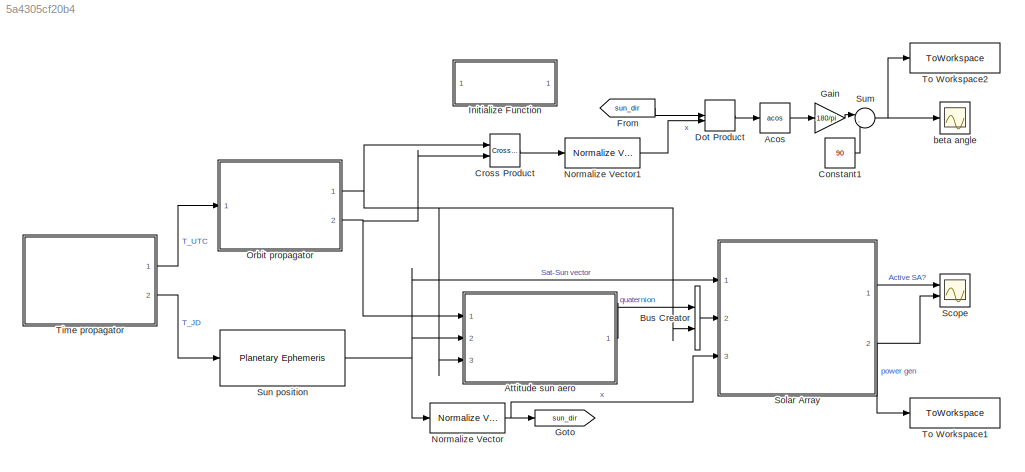
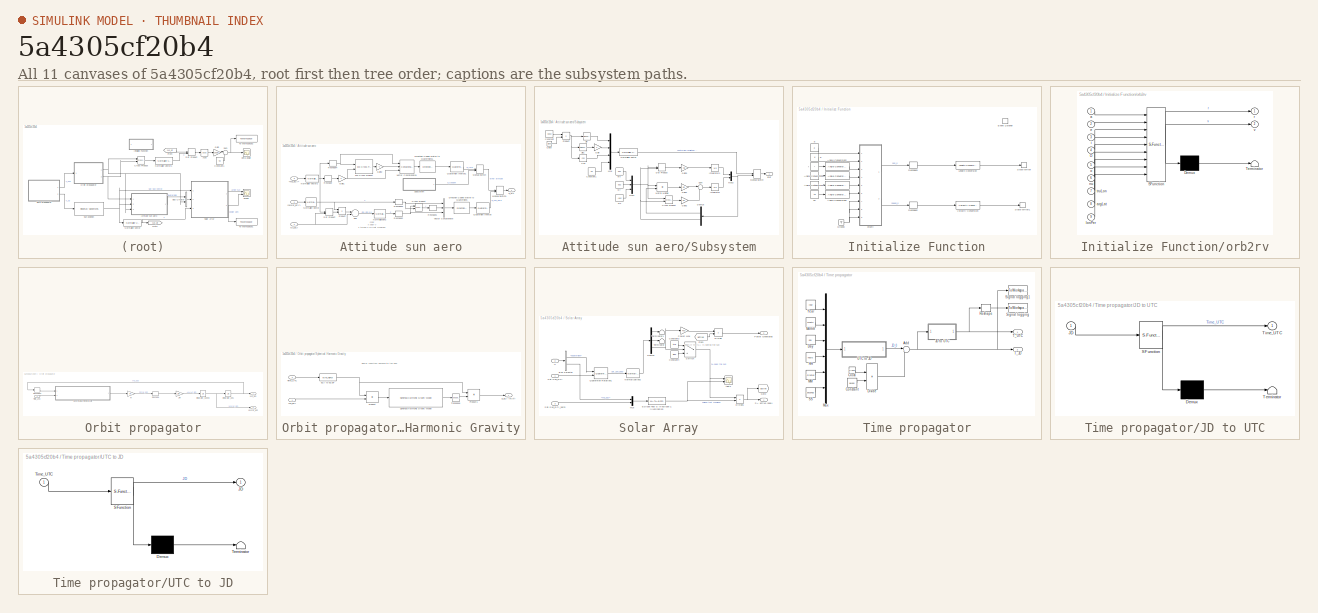
[diagram: thumbnail index - all 11 canvases of the model, root first then tree order]
MODEL slx_5a4305cf20b4
KIND model
CONFIG AbsTol = auto
CONFIG EnableMultiTasking = off
CONFIG FixedStep = delta_t
CONFIG MaxStep = auto
CONFIG MinStep = auto
CONFIG RelTol = 1e-3
CONFIG SampleTimeConstraint = Unconstrained
CONFIG Solver = FixedStepAuto
CONFIG SolverName = FixedStepAuto
CONFIG StartTime = 0.0
CONFIG StopTime = tsimulation
BLOCK [Trigonometry] Acos
  Operator = acos
  Ports = [1, 1]
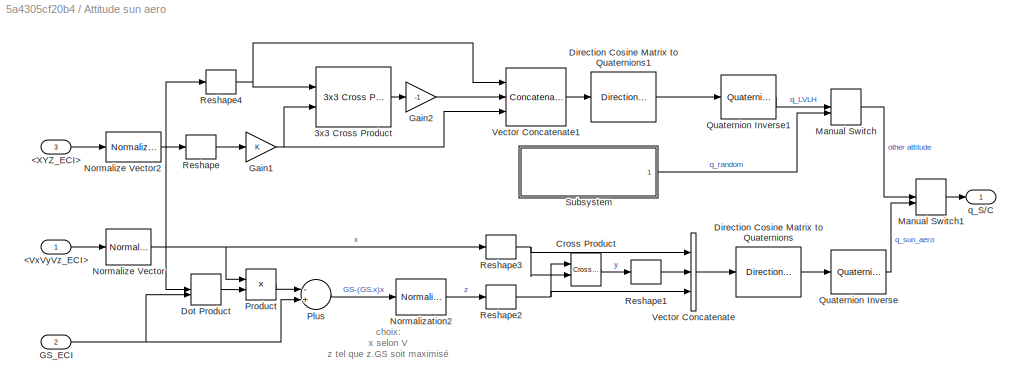
BLOCK [SubSystem] Attitude sun aero
  Ports = [3, 1]
  RequestExecContextInheritance = off
BLOCK [Reference] Attitude sun aero/3x3 Cross Product  REF=sharedutil/3x3 Cross Product
  Ports = [2, 1]
  SourceBlock = sharedutil/3x3 Cross Product
  SourceProductBaseCode = AE,PW,MT,UV,VE,VP
  SourceType = CrossProduct
BLOCK [Inport] Attitude sun aero/<VxVyVz_ECI>
  IconDisplay = Port number
BLOCK [Inport] Attitude sun aero/<XYZ_ECI>
  IconDisplay = Port number
  Port = 3
BLOCK [Reference] Attitude sun aero/Cross Product  REF=vrlib/Utilities/Cross Product
  Ports = [2, 1]
  SourceBlock = vrlib/Utilities/Cross Product
  SourceProductBaseCode = SL
  SourceType = Cross Product
BLOCK [Reference] Attitude sun aero/Direction Cosine Matrix to Quaternions  REF=sharedtransform/Direction Cosine Matrix 
to Quaternions
  Ports = [1, 1]
  SourceBlock = sharedtransform/Direction Cosine Matrix \nto Quaternions
  SourceProductBaseCode = AE,PW,MT,UV,VE,VP
  SourceType = DCM2Quaternion
BLOCK [Reference] Attitude sun aero/Direction Cosine Matrix to Quaternions1  REF=sharedtransform/Direction Cosine Matrix 
to Quaternions
  Ports = [1, 1]
  SourceBlock = sharedtransform/Direction Cosine Matrix \nto Quaternions
  SourceProductBaseCode = AE,PW,MT,UV,VE,VP
  SourceType = DCM2Quaternion
BLOCK [DotProduct] Attitude sun aero/Dot Product
  OutDataTypeStr = Inherit: Inherit via internal rule
BLOCK [Inport] Attitude sun aero/GS_ECI
  IconDisplay = Port number
  Port = 2
BLOCK [Gain] Attitude sun aero/Gain1
  OutDataTypeStr = Inherit: Inherit via internal rule
  ParamDataTypeStr = Inherit: Inherit via internal rule
  SaturateOnIntegerOverflow = off
BLOCK [Gain] Attitude sun aero/Gain2
  Gain = -1
  OutDataTypeStr = Inherit: Inherit via internal rule
  ParamDataTypeStr = Inherit: Inherit via internal rule
  SaturateOnIntegerOverflow = off
BLOCK [ManualSwitch] Attitude sun aero/Manual Switch
  CurrentSetting = 0
BLOCK [ManualSwitch] Attitude sun aero/Manual Switch1
  CurrentSetting = 0
BLOCK [Reference] Attitude sun aero/Normalization2  REF=dspmathops/Normalization
  Ports = [1, 1]
  SourceBlock = dspmathops/Normalization
  SourceProductBaseCode = DS
  SourceType = Normalization
BLOCK [Reference] Attitude sun aero/Normalize Vector  REF=vrlib/Utilities/Normalize Vector
  Ports = [1, 1]
  SourceBlock = vrlib/Utilities/Normalize Vector
  SourceProductBaseCode = SL
  SourceType = Normalize Vector
BLOCK [Reference] Attitude sun aero/Normalize Vector2  REF=vrlib/Utilities/Normalize Vector
  Ports = [1, 1]
  SourceBlock = vrlib/Utilities/Normalize Vector
  SourceProductBaseCode = SL
  SourceType = Normalize Vector
BLOCK [Sum] Attitude sun aero/Plus
  InputSameDT = off
  Inputs = -+
  OutDataTypeStr = Inherit: Inherit via internal rule
  Ports = [2, 1]
  SaturateOnIntegerOverflow = off
BLOCK [Product] Attitude sun aero/Product
  InputSameDT = off
  OutDataTypeStr = Inherit: Inherit via internal rule
  Ports = [2, 1]
  RndMeth = Floor
  SaturateOnIntegerOverflow = off
BLOCK [Reference] Attitude sun aero/Quaternion Inverse  REF=aerolibutil/Quaternion
Inverse
  Ports = [1, 1]
  SourceBlock = aerolibutil/Quaternion\nInverse
  SourceProductBaseCode = AE
  SourceType = Quaternion Inverse
BLOCK [Reference] Attitude sun aero/Quaternion Inverse1  REF=aerolibutil/Quaternion
Inverse
  Ports = [1, 1]
  SourceBlock = aerolibutil/Quaternion\nInverse
  SourceProductBaseCode = AE
  SourceType = Quaternion Inverse
BLOCK [Reshape] Attitude sun aero/Reshape
  OutputDimensionality = Column vector (2-D)
  Ports = [1, 1]
BLOCK [Reshape] Attitude sun aero/Reshape1
  OutputDimensionality = Column vector (2-D)
  Ports = [1, 1]
BLOCK [Reshape] Attitude sun aero/Reshape2
  OutputDimensionality = Column vector (2-D)
  Ports = [1, 1]
BLOCK [Reshape] Attitude sun aero/Reshape3
  OutputDimensionality = Column vector (2-D)
  Ports = [1, 1]
BLOCK [Reshape] Attitude sun aero/Reshape4
  OutputDimensionality = Column vector (2-D)
  Ports = [1, 1]
BLOCK [SubSystem] Attitude sun aero/Subsystem
  Ports = [0, 1]
  RequestExecContextInheritance = off
BLOCK [Clock] Attitude sun aero/Subsystem/Clock
BLOCK [Constant] Attitude sun aero/Subsystem/Constant
  Value = 0.002
BLOCK [Constant] Attitude sun aero/Subsystem/Constant1
  Value = 0.2
BLOCK [Trigonometry] Attitude sun aero/Subsystem/Cos
  Operator = cos
  Ports = [1, 1]
BLOCK [Reference] Attitude sun aero/Subsystem/Cross Product  REF=vrlib/Utilities/Cross Product
  Ports = [2, 1]
  SourceBlock = vrlib/Utilities/Cross Product
  SourceProductBaseCode = SL
  SourceType = Cross Product
BLOCK [Demux] Attitude sun aero/Subsystem/Demux
  DisplayOption = bar
  Outputs = [1;3]
  Ports = [1, 2]
BLOCK [DotProduct] Attitude sun aero/Subsystem/Dot Product
  OutDataTypeStr = Inherit: Inherit via internal rule
BLOCK [Gain] Attitude sun aero/Subsystem/Gain
  Gain = 2
  OutDataTypeStr = Inherit: Inherit via internal rule
  ParamDataTypeStr = Inherit: Inherit via internal rule
  SaturateOnIntegerOverflow = off
BLOCK [Gain] Attitude sun aero/Subsystem/Gain1
  Gain = 0.5
  OutDataTypeStr = Inherit: Inherit via internal rule
  ParamDataTypeStr = Inherit: Inherit via internal rule
  SaturateOnIntegerOverflow = off
BLOCK [Gain] Attitude sun aero/Subsystem/Gain2
  Gain = 0.5
  OutDataTypeStr = Inherit: Inherit via internal rule
  ParamDataTypeStr = Inherit: Inherit via internal rule
  SaturateOnIntegerOverflow = off
BLOCK [Gain] Attitude sun aero/Subsystem/Gain3
  Gain = -0.5
  OutDataTypeStr = Inherit: Inherit via internal rule
  ParamDataTypeStr = Inherit: Inherit via internal rule
  SaturateOnIntegerOverflow = off
BLOCK [Integrator] Attitude sun aero/Subsystem/Integrator
  InitialCondition = [0;0;0]
  Ports = [1, 1]
BLOCK [Integrator] Attitude sun aero/Subsystem/Integrator1
  InitialCondition = 1
  Ports = [1, 1]
BLOCK [ManualSwitch] Attitude sun aero/Subsystem/Manual Switch
  CurrentSetting = 0
BLOCK [Product] Attitude sun aero/Subsystem/Matrix Multiply
  InputSameDT = off
  Multiplication = Matrix(*)
  OutDataTypeStr = Inherit: Inherit via internal rule
  Ports = [2, 1]
  RndMeth = Floor
  SaturateOnIntegerOverflow = off
BLOCK [Mux] Attitude sun aero/Subsystem/Mux
  DisplayOption = bar
  Ports = [4, 1]
BLOCK [Mux] Attitude sun aero/Subsystem/Mux1
  DisplayOption = bar
  Inputs = 3
  Ports = [3, 1]
BLOCK [Mux] Attitude sun aero/Subsystem/Mux2
  DisplayOption = bar
  Inputs = [1;3]
  Ports = [2, 1]
BLOCK [Reference] Attitude sun aero/Subsystem/Normalize Vector  REF=vrlib/Utilities/Normalize Vector
  Ports = [1, 1]
  SourceBlock = vrlib/Utilities/Normalize Vector
  SourceProductBaseCode = SL
  SourceType = Normalize Vector
BLOCK [Product] Attitude sun aero/Subsystem/Product
  InputSameDT = off
  OutDataTypeStr = Inherit: Inherit via internal rule
  Ports = [2, 1]
  RndMeth = Floor
  SaturateOnIntegerOverflow = off
BLOCK [Trigonometry] Attitude sun aero/Subsystem/Sin
  Ports = [1, 1]
BLOCK [Trigonometry] Attitude sun aero/Subsystem/Sin1
  Ports = [1, 1]
BLOCK [Sum] Attitude sun aero/Subsystem/Sum
  IconShape = round
  InputSameDT = off
  Inputs = |+-
  OutDataTypeStr = Inherit: Inherit via internal rule
  Ports = [2, 1]
  SaturateOnIntegerOverflow = off
BLOCK [Outport] Attitude sun aero/Subsystem/qref
  IconDisplay = Port number
  VectorParamsAs1DForOutWhenUnconnected = on
BLOCK [Constant] Attitude sun aero/Subsystem/wx
  Value = 0.01
BLOCK [Constant] Attitude sun aero/Subsystem/wy
  Value = 0.02
BLOCK [Constant] Attitude sun aero/Subsystem/wz
  Value = -0.02
BLOCK [Concatenate] Attitude sun aero/Vector Concatenate
  ConcatenateDimension = 2
  Mode = Multidimensional array
  NumInputs = 3
  Ports = [3, 1]
BLOCK [Concatenate] Attitude sun aero/Vector Concatenate1
  ConcatenateDimension = 2
  Mode = Multidimensional array
  NumInputs = 3
  Ports = [3, 1]
BLOCK [Outport] Attitude sun aero/q_S//C
  IconDisplay = Port number
BLOCK [BusCreator] Bus Creator
  DisplayOption = bar
  InheritFromInputs = on
  Inputs = 2
  Ports = [2, 1]
BLOCK [Constant] Constant1
  Value = 90
BLOCK [Reference] Cross Product  REF=vrlib/Utilities/Cross Product
  Ports = [2, 1]
  SourceBlock = vrlib/Utilities/Cross Product
  SourceProductBaseCode = SL
  SourceType = Cross Product
BLOCK [DotProduct] Dot Product
  OutDataTypeStr = Inherit: Inherit via internal rule
BLOCK [From] From
  GotoTag = sun_dir
BLOCK [Gain] Gain
  Gain = 180/pi
  OutDataTypeStr = Inherit: Inherit via internal rule
  ParamDataTypeStr = Inherit: Inherit via internal rule
  SaturateOnIntegerOverflow = off
BLOCK [Goto] Goto
  GotoTag = sun_dir
BLOCK [SubSystem] Initialize Function
  Ports = []
  RequestExecContextInheritance = off
  TreatAsAtomicUnit = on
BLOCK [Reference] Initialize Function/Angle Conversion2  REF=aerolibconvert2/Angle Conversion
  Ports = [1, 1]
  SourceBlock = aerolibconvert2/Angle Conversion
  SourceProductBaseCode = AE
  SourceType = Angle Conversion
BLOCK [Reference] Initialize Function/Angle Conversion3  REF=aerolibconvert2/Angle Conversion
  Ports = [1, 1]
  SourceBlock = aerolibconvert2/Angle Conversion
  SourceProductBaseCode = AE
  SourceType = Angle Conversion
BLOCK [Reference] Initialize Function/Angle Conversion4  REF=aerolibconvert2/Angle Conversion
  Ports = [1, 1]
  SourceBlock = aerolibconvert2/Angle Conversion
  SourceProductBaseCode = AE
  SourceType = Angle Conversion
BLOCK [Reference] Initialize Function/Angle Conversion5  REF=aerolibconvert2/Angle Conversion
  Ports = [1, 1]
  SourceBlock = aerolibconvert2/Angle Conversion
  SourceProductBaseCode = AE
  SourceType = Angle Conversion
BLOCK [EventListener] Initialize Function/Event Listener
  DisableCoverage = on
  EventName = reset
BLOCK [Ground] Initialize Function/Ground
BLOCK [Reference] Initialize Function/Length Conversion  REF=aerolibconvert2/Length Conversion
  Ports = [1, 1]
  SourceBlock = aerolibconvert2/Length Conversion
  SourceProductBaseCode = AE
  SourceType = Length Conversion
BLOCK [Constant] Initialize Function/O
  Value = O
BLOCK [Reshape] Initialize Function/Reshape2
  OutputDimensionality = Column vector (2-D)
  Ports = [1, 1]
BLOCK [Reshape] Initialize Function/Reshape3
  OutputDimensionality = Column vector (2-D)
  Ports = [1, 1]
BLOCK [StateWriter] Initialize Function/State Writer
  StateOwnerBlock = ../../Orbit propagator/Integrator_pos
BLOCK [StateWriter] Initialize Function/State Writer1
  StateOwnerBlock = ../../Orbit propagator/Integrator_speed
BLOCK [Reference] Initialize Function/Velocity Conversion  REF=aerolibconvert2/Velocity Conversion
  Ports = [1, 1]
  SourceBlock = aerolibconvert2/Velocity Conversion
  SourceProductBaseCode = AE
  SourceType = Velocity Conversion
BLOCK [Constant] Initialize Function/a
  Value = a
BLOCK [Constant] Initialize Function/e
  Value = e
BLOCK [Constant] Initialize Function/i
  Value = i
BLOCK [Constant] Initialize Function/nu
  Value = nu
BLOCK [Constant] Initialize Function/o
  Value = o
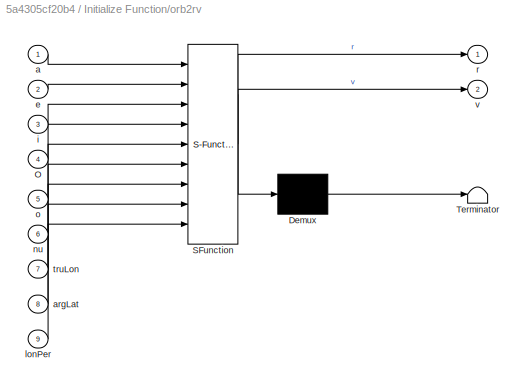
BLOCK [SubSystem] Initialize Function/orb2rv
  ErrorFcn = Stateflow.Translate.translate
  PermitHierarchicalResolution = ExplicitOnly
  Ports = [9, 2]
  RequestExecContextInheritance = off
  SFBlockType = MATLAB Function
  TreatAsAtomicUnit = on
BLOCK [Demux] Initialize Function/orb2rv/ Demux 
  DisplayOption = bar
  Outputs = 1
  Ports = [1, 1]
BLOCK [S-Function] Initialize Function/orb2rv/ SFunction 
  EnableBusSupport = on
  FunctionName = sf_sfun
  PortCounts = [9 3]
  Ports = [9, 3]
  SFcnIsStateOwnerBlock = off
  SFunctionDeploymentMode = off
  Tag = Stateflow S-Function EPS_orbit_v1a_R19a 5
BLOCK [Terminator] Initialize Function/orb2rv/ Terminator 
BLOCK [Inport] Initialize Function/orb2rv/O
  IconDisplay = Port number
  Port = 4
BLOCK [Inport] Initialize Function/orb2rv/a
  IconDisplay = Port number
BLOCK [Inport] Initialize Function/orb2rv/argLat
  IconDisplay = Port number
  Port = 8
BLOCK [Inport] Initialize Function/orb2rv/e
  IconDisplay = Port number
  Port = 2
BLOCK [Inport] Initialize Function/orb2rv/i
  IconDisplay = Port number
  Port = 3
BLOCK [Inport] Initialize Function/orb2rv/lonPer
  IconDisplay = Port number
  Port = 9
BLOCK [Inport] Initialize Function/orb2rv/nu
  IconDisplay = Port number
  Port = 6
BLOCK [Inport] Initialize Function/orb2rv/o
  IconDisplay = Port number
  Port = 5
BLOCK [Outport] Initialize Function/orb2rv/r
  IconDisplay = Port number
BLOCK [Inport] Initialize Function/orb2rv/truLon
  IconDisplay = Port number
  Port = 7
BLOCK [Outport] Initialize Function/orb2rv/v
  IconDisplay = Port number
  Port = 2
BLOCK [Reference] Normalize Vector  REF=vrlib/Utilities/Normalize Vector
  Ports = [1, 1]
  SourceBlock = vrlib/Utilities/Normalize Vector
  SourceProductBaseCode = SL
  SourceType = Normalize Vector
BLOCK [Reference] Normalize Vector1  REF=vrlib/Utilities/Normalize Vector
  Ports = [1, 1]
  SourceBlock = vrlib/Utilities/Normalize Vector
  SourceProductBaseCode = SL
  SourceType = Normalize Vector
BLOCK [SubSystem] Orbit propagator
  Ports = [1, 2]
  RequestExecContextInheritance = off
BLOCK [Gain] Orbit propagator/1//m
  Gain = 1/m
  OutDataTypeStr = Inherit: Inherit via internal rule
  ParamDataTypeStr = Inherit: Inherit via internal rule
  SaturateOnIntegerOverflow = off
BLOCK [Integrator] Orbit propagator/Integrator_pos
  Ports = [1, 1]
BLOCK [Integrator] Orbit propagator/Integrator_speed
  Ports = [1, 1]
BLOCK [Reshape] Orbit propagator/Reshape
  OutputDimensionality = Column vector (2-D)
  Ports = [1, 1]
BLOCK [Reshape] Orbit propagator/Reshape2
  OutputDimensionality = Column vector (2-D)
  Ports = [1, 1]
BLOCK [SubSystem] Orbit propagator/Spherical Harmonic Gravity
  Ports = [2, 1]
  RequestExecContextInheritance = off
  SystemSampleTime = 1
  TreatAsAtomicUnit = on
BLOCK [MATLABFcn] Orbit propagator/Spherical Harmonic Gravity/ECI to ECEF
  MATLABFcn = eci2ecef
  Output1D = off
  OutputDimensions = [3;3]
  Ports = [1, 1]
BLOCK [Product] Orbit propagator/Spherical Harmonic Gravity/Product
  InputSameDT = off
  Multiplication = Matrix(*)
  OutDataTypeStr = Inherit: Inherit via internal rule
  Ports = [2, 1]
  RndMeth = Floor
  SaturateOnIntegerOverflow = off
BLOCK [Product] Orbit propagator/Spherical Harmonic Gravity/Product1
  InputSameDT = off
  Inputs = /*
  Multiplication = Matrix(*)
  OutDataTypeStr = Inherit: Inherit via internal rule
  Ports = [2, 1]
  RndMeth = Floor
  SaturateOnIntegerOverflow = off
BLOCK [Reference] Orbit propagator/Spherical Harmonic Gravity/Spherical Harmonic Gravity Model  REF=aerolibgravity2/Spherical Harmonic Gravity Model
  Ports = [1, 1]
  SourceBlock = aerolibgravity2/Spherical Harmonic Gravity Model
  SourceProductBaseCode = AE
  SourceType = Spherical Harmonic Gravity Model
BLOCK [Inport] Orbit propagator/Spherical Harmonic Gravity/Time_UTC
  IconDisplay = Port number
  Port = 2
BLOCK [Math] Orbit propagator/Spherical Harmonic Gravity/Transpose
  Operator = transpose
  Ports = [1, 1]
BLOCK [Inport] Orbit propagator/Spherical Harmonic Gravity/XYZ_ECI
  IconDisplay = Port number
BLOCK [Outport] Orbit propagator/Spherical Harmonic Gravity/g_ECI (m//s²)
  IconDisplay = Port number
  VectorParamsAs1DForOutWhenUnconnected = on
BLOCK [Inport] Orbit propagator/Time_UTC 
  IconDisplay = Port number
BLOCK [Outport] Orbit propagator/VxVyVz_ECI
  IconDisplay = Port number
  Port = 2
  VectorParamsAs1DForOutWhenUnconnected = on
BLOCK [Outport] Orbit propagator/XYZ_ECI
  IconDisplay = Port number
BLOCK [Gain] Orbit propagator/m
  Gain = m
  OutDataTypeStr = Inherit: Inherit via internal rule
  ParamDataTypeStr = Inherit: Inherit via internal rule
  SaturateOnIntegerOverflow = off
BLOCK [Scope] Scope
  Floating = off
  NumInputPorts = 2
  Ports = [2]
  ScopeSpecificationString = Simulink.scopes.TimeScopeBlockCfg('CurrentConfiguration', extmgr.ConfigurationSet(extmgr.Configuration('Core','General UI',true),extmgr.Configuration('Core','Source UI',true),extmgr.Configuration('Sources','WiredSimulink',true,'DataLoggingVariableName','ScopeData1'),extmgr.Configuration('Visuals','Time Domain',true,'SerializedDisplays',{struct('MinYLimReal','-0.125','MaxYLimReal','1.125','YLabelRe...<+2122ch>
BLOCK [SubSystem] Solar Array
  Ports = [3, 2]
  RequestExecContextInheritance = off
BLOCK [BusSelector] Solar Array/Bus Selector
  OutputAsBus = off
  OutputSignals = quaternion,XYZ_ECI
  Ports = [1, 2]
BLOCK [Constant] Solar Array/Constant3
  Value = true
BLOCK [Constant] Solar Array/Constant4
  Value = false
BLOCK [Demux] Solar Array/Demux
  DisplayOption = bar
  Outputs = 3
  Ports = [1, 3]
BLOCK [Product] Solar Array/Divide
  InputSameDT = off
  Inputs = **
  OutDataTypeStr = Inherit: Inherit via internal rule
  Ports = [2, 1]
  RndMeth = Floor
  SaturateOnIntegerOverflow = off
BLOCK [Product] Solar Array/Divide1
  InputSameDT = off
  Inputs = **
  OutDataTypeStr = Inherit: Inherit via internal rule
  Ports = [2, 1]
  RndMeth = Floor
  SaturateOnIntegerOverflow = off
BLOCK [MATLABFcn] Solar Array/Eclipse Test 0: in eclipse 1: illumination
  MATLABFcn = eclipse_check
  Ports = [1, 1]
BLOCK [From] Solar Array/From
  GotoTag = active
BLOCK [Goto] Solar Array/Goto
  GotoTag = active
BLOCK [Mux] Solar Array/Mux
  DisplayOption = bar
  Inputs = 2
  Ports = [2, 1]
BLOCK [Reference] Solar Array/Normalization2  REF=dspmathops/Normalization
  Ports = [1, 1]
  SourceBlock = dspmathops/Normalization
  SourceProductBaseCode = DS
  SourceType = Normalization
BLOCK [Outport] Solar Array/Power Generated
  IconDisplay = Port number
  Port = 2
  VectorParamsAs1DForOutWhenUnconnected = on
BLOCK [Gain] Solar Array/Power Max
  Gain = Psa
  OutDataTypeStr = Inherit: Inherit via internal rule
  ParamDataTypeStr = Inherit: Inherit via internal rule
  SaturateOnIntegerOverflow = off
BLOCK [Reference] Solar Array/Quaternion Rotation1  REF=aerolibutil/Quaternion
Rotation
  Ports = [2, 1]
  SourceBlock = aerolibutil/Quaternion\nRotation
  SourceProductBaseCode = AE
  SourceType = Quaternion Rotation
BLOCK [Outport] Solar Array/SA active (bool)
  IconDisplay = Port number
BLOCK [Inport] Solar Array/Sat-Sun_ECI
  IconDisplay = Port number
BLOCK [Inport] Solar Array/Sat-Sun_ECI_norm
  IconDisplay = Port number
  Port = 3
BLOCK [Switch] Solar Array/Switch
  Criteria = u2 > Threshold
  InputSameDT = off
  SaturateOnIntegerOverflow = off
BLOCK [Terminator] Solar Array/Terminator
BLOCK [Terminator] Solar Array/Terminator1
BLOCK [Inport] Solar Array/U
  IconDisplay = Port number
  Port = 2
BLOCK [Scope] Solar Array/tests
  Floating = off
  NumInputPorts = 2
  Ports = [2]
  ScopeSpecificationString = Simulink.scopes.TimeScopeBlockCfg('CurrentConfiguration', extmgr.ConfigurationSet(extmgr.Configuration('Core','General UI',true),extmgr.Configuration('Core','Source UI',true),extmgr.Configuration('Sources','WiredSimulink',true,'DataLoggingVariableName','ScopeData2'),extmgr.Configuration('Visuals','Time Domain',true,'SerializedDisplays',{struct('MinYLimReal','0.9','MaxYLimReal','1.1','YLabelReal','...<+2060ch>
BLOCK [Sum] Sum
  IconShape = round
  InputSameDT = off
  Inputs = |-+
  OutDataTypeStr = Inherit: Inherit via internal rule
  Ports = [2, 1]
  SaturateOnIntegerOverflow = off
BLOCK [Reference] Sun position  REF=aerolibcelestial/Planetary Ephemeris
  Ports = [1, 1]
  SourceBlock = aerolibcelestial/Planetary Ephemeris
  SourceProductBaseCode = AE
  SourceType = PlanetaryEphemeris
BLOCK [SubSystem] Time propagator
  Ports = [0, 2]
  RequestExecContextInheritance = off
BLOCK [Sum] Time propagator/Add
  IconShape = round
  InputSameDT = off
  Inputs = |++
  OutDataTypeStr = Inherit: Inherit via internal rule
  Ports = [2, 1]
  SaturateOnIntegerOverflow = off
BLOCK [Clock] Time propagator/Clock
BLOCK [Constant] Time propagator/Constant
  Value = 86400
BLOCK [Constant] Time propagator/Day
  Value = day
BLOCK [Product] Time propagator/Divide
  InputSameDT = off
  Inputs = */
  OutDataTypeStr = Inherit: Inherit via internal rule
  Ports = [2, 1]
  RndMeth = Floor
  SaturateOnIntegerOverflow = off
BLOCK [Constant] Time propagator/HH
  Value = hours
BLOCK [SubSystem] Time propagator/JD to UTC
  ErrorFcn = Stateflow.Translate.translate
  PermitHierarchicalResolution = ExplicitOnly
  Ports = [1, 1]
  RequestExecContextInheritance = off
  SFBlockType = MATLAB Function
  TreatAsAtomicUnit = on
BLOCK [Demux] Time propagator/JD to UTC/ Demux 
  DisplayOption = bar
  Outputs = 1
  Ports = [1, 1]
BLOCK [S-Function] Time propagator/JD to UTC/ SFunction 
  EnableBusSupport = on
  FunctionName = sf_sfun
  PortCounts = [1 2]
  Ports = [1, 2]
  SFcnIsStateOwnerBlock = off
  SFunctionDeploymentMode = off
  Tag = Stateflow S-Function EPS_orbit_v1a_R19a 1
BLOCK [Terminator] Time propagator/JD to UTC/ Terminator 
BLOCK [Inport] Time propagator/JD to UTC/JD
  IconDisplay = Port number
BLOCK [Outport] Time propagator/JD to UTC/Time_UTC
  IconDisplay = Port number
BLOCK [Constant] Time propagator/MM
  Value = minutes
BLOCK [Constant] Time propagator/Month
  Value = month
BLOCK [Mux] Time propagator/Mux
  DisplayOption = bar
  Inputs = 6
  Ports = [6, 1]
BLOCK [Reshape] Time propagator/Reshape
  Ports = [1, 1]
BLOCK [Constant] Time propagator/SS
  Value = seconds
BLOCK [ToWorkspace] Time propagator/Signal logging
  FixptAsFi = on
  MaxDataPoints = inf
  Ports = [1]
  SampleTime = 1
  Save2DSignal = 2-D array (concatenate along first dimension)
  SaveFormat = Timeseries
  VariableName = T_UTC
BLOCK [ToWorkspace] Time propagator/Signal logging1
  FixptAsFi = on
  MaxDataPoints = inf
  Ports = [1]
  SampleTime = 1
  Save2DSignal = 2-D array (concatenate along first dimension)
  SaveFormat = Timeseries
  VariableName = T_JD
BLOCK [Outport] Time propagator/T_JD
  IconDisplay = Port number
  Port = 2
BLOCK [Outport] Time propagator/T_UTC
  IconDisplay = Port number
BLOCK [SubSystem] Time propagator/UTC to JD
  ErrorFcn = Stateflow.Translate.translate
  PermitHierarchicalResolution = ExplicitOnly
  Ports = [1, 1]
  RequestExecContextInheritance = off
  SFBlockType = MATLAB Function
  TreatAsAtomicUnit = on
BLOCK [Demux] Time propagator/UTC to JD/ Demux 
  DisplayOption = bar
  Outputs = 1
  Ports = [1, 1]
BLOCK [S-Function] Time propagator/UTC to JD/ SFunction 
  EnableBusSupport = on
  FunctionName = sf_sfun
  PortCounts = [1 2]
  Ports = [1, 2]
  SFcnIsStateOwnerBlock = off
  SFunctionDeploymentMode = off
  Tag = Stateflow S-Function EPS_orbit_v1a_R19a 2
BLOCK [Terminator] Time propagator/UTC to JD/ Terminator 
BLOCK [Outport] Time propagator/UTC to JD/JD
  IconDisplay = Port number
BLOCK [Inport] Time propagator/UTC to JD/Time_UTC
  IconDisplay = Port number
BLOCK [Constant] Time propagator/Year
  Value = year
BLOCK [ToWorkspace] To Workspace1
  FixptAsFi = on
  MaxDataPoints = inf
  Ports = [1]
  SampleTime = -1
  SaveFormat = Timeseries
  VariableName = Psa1
BLOCK [ToWorkspace] To Workspace2
  FixptAsFi = on
  MaxDataPoints = inf
  Ports = [1]
  SampleTime = -1
  SaveFormat = Timeseries
  VariableName = beta
BLOCK [Scope] beta angle
  Floating = off
  NumInputPorts = 1
  Ports = [1]
  ScopeSpecificationString = Simulink.scopes.TimeScopeBlockCfg('CurrentConfiguration', extmgr.ConfigurationSet(extmgr.Configuration('Core','General UI',true),extmgr.Configuration('Core','Source UI',true),extmgr.Configuration('Sources','WiredSimulink',true,'DataLoggingVariableName','ScopeData2'),extmgr.Configuration('Visuals','Time Domain',true,'SerializedDisplays',{struct('MinYLimReal','-44.44519','MaxYLimReal','-42.64599','Y...<+1422ch>
ANNOTATION Attitude sun aero: choix : x selon V z tel que z.GS soit maximisé
ANNOTATION Orbit propagator/Spherical Harmonic Gravity: Slower subsytem because it's too slow
ANNOTATION Solar Array: Tests if the SA is seeing the sun
LINE Acos:1 -> Gain:1
LINE Attitude sun aero/3x3 Cross Product:1 -> Attitude sun aero/Gain2:1
LINE Attitude sun aero/<VxVyVz_ECI>:1 -> Attitude sun aero/Normalize Vector:1
LINE Attitude sun aero/<XYZ_ECI>:1 -> Attitude sun aero/Normalize Vector2:1
LINE Attitude sun aero/Cross Product:1 -> Attitude sun aero/Reshape1:1
LINE Attitude sun aero/Direction Cosine Matrix to Quaternions1:1 -> Attitude sun aero/Quaternion Inverse1:1
LINE Attitude sun aero/Direction Cosine Matrix to Quaternions:1 -> Attitude sun aero/Quaternion Inverse:1
LINE Attitude sun aero/Dot Product:1 -> Attitude sun aero/Product:2
NET Attitude sun aero/GS_ECI:1 -> Attitude sun aero/Dot Product:2, Attitude sun aero/Plus:2
NET Attitude sun aero/Gain1:1 -> Attitude sun aero/3x3 Cross Product:2, Attitude sun aero/Vector Concatenate1:3
LINE Attitude sun aero/Gain2:1 -> Attitude sun aero/Vector Concatenate1:2
LINE Attitude sun aero/Manual Switch1:1 -> Attitude sun aero/q_S//C:1
LINE Attitude sun aero/Manual Switch:1 -> Attitude sun aero/Manual Switch1:1
LINE Attitude sun aero/Normalization2:1 -> Attitude sun aero/Reshape2:1
LINE Attitude sun aero/Normalize Vector2:1 -> Attitude sun aero/Reshape:1
NET Attitude sun aero/Normalize Vector:1 -> Attitude sun aero/Dot Product:1, Attitude sun aero/Product:1, Attitude sun aero/Reshape3:1, Attitude sun aero/Reshape4:1
LINE Attitude sun aero/Plus:1 -> Attitude sun aero/Normalization2:1
LINE Attitude sun aero/Product:1 -> Attitude sun aero/Plus:1
LINE Attitude sun aero/Quaternion Inverse1:1 -> Attitude sun aero/Manual Switch:1
LINE Attitude sun aero/Quaternion Inverse:1 -> Attitude sun aero/Manual Switch1:2
LINE Attitude sun aero/Reshape1:1 -> Attitude sun aero/Vector Concatenate:2
NET Attitude sun aero/Reshape2:1 -> Attitude sun aero/Cross Product:1, Attitude sun aero/Vector Concatenate:3
NET Attitude sun aero/Reshape3:1 -> Attitude sun aero/Cross Product:2, Attitude sun aero/Vector Concatenate:1
NET Attitude sun aero/Reshape4:1 -> Attitude sun aero/3x3 Cross Product:1, Attitude sun aero/Vector Concatenate1:1
LINE Attitude sun aero/Reshape:1 -> Attitude sun aero/Gain1:1
LINE Attitude sun aero/Subsystem/Clock:1 -> Attitude sun aero/Subsystem/Product:2
LINE Attitude sun aero/Subsystem/Constant1:1 -> Attitude sun aero/Subsystem/Mux:4
LINE Attitude sun aero/Subsystem/Constant:1 -> Attitude sun aero/Subsystem/Product:1
LINE Attitude sun aero/Subsystem/Cos:1 -> Attitude sun aero/Subsystem/Mux:3
LINE Attitude sun aero/Subsystem/Cross Product:1 -> Attitude sun aero/Subsystem/Gain2:1
LINE Attitude sun aero/Subsystem/Demux:1 -> Attitude sun aero/Subsystem/Matrix Multiply:2
NET Attitude sun aero/Subsystem/Demux:2 -> Attitude sun aero/Subsystem/Cross Product:2, Attitude sun aero/Subsystem/Dot Product:2
LINE Attitude sun aero/Subsystem/Dot Product:1 -> Attitude sun aero/Subsystem/Gain3:1
LINE Attitude sun aero/Subsystem/Gain1:1 -> Attitude sun aero/Subsystem/Sum:1
LINE Attitude sun aero/Subsystem/Gain2:1 -> Attitude sun aero/Subsystem/Sum:2
LINE Attitude sun aero/Subsystem/Gain3:1 -> Attitude sun aero/Subsystem/Integrator1:1
LINE Attitude sun aero/Subsystem/Gain:1 -> Attitude sun aero/Subsystem/Mux:2
LINE Attitude sun aero/Subsystem/Integrator1:1 -> Attitude sun aero/Subsystem/Mux2:1
LINE Attitude sun aero/Subsystem/Integrator:1 -> Attitude sun aero/Subsystem/Mux2:2
LINE Attitude sun aero/Subsystem/Manual Switch:1 -> Attitude sun aero/Subsystem/qref:1
LINE Attitude sun aero/Subsystem/Matrix Multiply:1 -> Attitude sun aero/Subsystem/Gain1:1
NET Attitude sun aero/Subsystem/Mux1:1 -> Attitude sun aero/Subsystem/Cross Product:1, Attitude sun aero/Subsystem/Dot Product:1, Attitude sun aero/Subsystem/Matrix Multiply:1
NET Attitude sun aero/Subsystem/Mux2:1 -> Attitude sun aero/Subsystem/Demux:1, Attitude sun aero/Subsystem/Manual Switch:2
LINE Attitude sun aero/Subsystem/Mux:1 -> Attitude sun aero/Subsystem/Normalize Vector:1
LINE Attitude sun aero/Subsystem/Normalize Vector:1 -> Attitude sun aero/Subsystem/Manual Switch:1
NET Attitude sun aero/Subsystem/Product:1 -> Attitude sun aero/Subsystem/Cos:1, Attitude sun aero/Subsystem/Sin1:1, Attitude sun aero/Subsystem/Sin:1
LINE Attitude sun aero/Subsystem/Sin1:1 -> Attitude sun aero/Subsystem/Gain:1
LINE Attitude sun aero/Subsystem/Sin:1 -> Attitude sun aero/Subsystem/Mux:1
LINE Attitude sun aero/Subsystem/Sum:1 -> Attitude sun aero/Subsystem/Integrator:1
LINE Attitude sun aero/Subsystem/wx:1 -> Attitude sun aero/Subsystem/Mux1:1
LINE Attitude sun aero/Subsystem/wy:1 -> Attitude sun aero/Subsystem/Mux1:2
LINE Attitude sun aero/Subsystem/wz:1 -> Attitude sun aero/Subsystem/Mux1:3
LINE Attitude sun aero/Subsystem:1 -> Attitude sun aero/Manual Switch:2
LINE Attitude sun aero/Vector Concatenate1:1 -> Attitude sun aero/Direction Cosine Matrix to Quaternions1:1
LINE Attitude sun aero/Vector Concatenate:1 -> Attitude sun aero/Direction Cosine Matrix to Quaternions:1
LINE Attitude sun aero:1 -> Bus Creator:1
LINE Bus Creator:1 -> Solar Array:2
LINE Constant1:1 -> Sum:2
LINE Cross Product:1 -> Normalize Vector1:1
LINE Dot Product:1 -> Acos:1
LINE From:1 -> Dot Product:1
LINE Gain:1 -> Sum:1
LINE Initialize Function/Angle Conversion2:1 -> Initialize Function/orb2rv:3
LINE Initialize Function/Angle Conversion3:1 -> Initialize Function/orb2rv:4
LINE Initialize Function/Angle Conversion4:1 -> Initialize Function/orb2rv:5
LINE Initialize Function/Angle Conversion5:1 -> Initialize Function/orb2rv:6
NET Initialize Function/Ground:1 -> Initialize Function/orb2rv:7, Initialize Function/orb2rv:8, Initialize Function/orb2rv:9
LINE Initialize Function/Length Conversion:1 -> Initialize Function/State Writer:1
LINE Initialize Function/O:1 -> Initialize Function/Angle Conversion3:1
LINE Initialize Function/Reshape2:1 -> Initialize Function/Velocity Conversion:1
LINE Initialize Function/Reshape3:1 -> Initialize Function/Length Conversion:1
LINE Initialize Function/Velocity Conversion:1 -> Initialize Function/State Writer1:1
LINE Initialize Function/a:1 -> Initialize Function/orb2rv:1
LINE Initialize Function/e:1 -> Initialize Function/orb2rv:2
LINE Initialize Function/i:1 -> Initialize Function/Angle Conversion2:1
LINE Initialize Function/nu:1 -> Initialize Function/Angle Conversion5:1
LINE Initialize Function/o:1 -> Initialize Function/Angle Conversion4:1
LINE Initialize Function/orb2rv:1 -> Initialize Function/Reshape3:1
LINE Initialize Function/orb2rv:2 -> Initialize Function/Reshape2:1
LINE Normalize Vector1:1 -> Dot Product:2
NET Normalize Vector:1 -> Goto:1, Solar Array:3
LINE Orbit propagator/1//m:1 -> Orbit propagator/Integrator_speed:1
NET Orbit propagator/Integrator_pos:1 -> Orbit propagator/Reshape2:1, Orbit propagator/XYZ_ECI:1
NET Orbit propagator/Integrator_speed:1 -> Orbit propagator/Integrator_pos:1, Orbit propagator/VxVyVz_ECI:1
LINE Orbit propagator/Reshape2:1 -> Orbit propagator/Spherical Harmonic Gravity:1
LINE Orbit propagator/Reshape:1 -> Orbit propagator/1//m:1
NET Orbit propagator/Spherical Harmonic Gravity/ECI to ECEF:1 -> Orbit propagator/Spherical Harmonic Gravity/Product1:1, Orbit propagator/Spherical Harmonic Gravity/Product:1
LINE Orbit propagator/Spherical Harmonic Gravity/Product1:1 -> Orbit propagator/Spherical Harmonic Gravity/g_ECI (m//s²):1
LINE Orbit propagator/Spherical Harmonic Gravity/Product:1 -> Orbit propagator/Spherical Harmonic Gravity/Spherical Harmonic Gravity Model:1
LINE Orbit propagator/Spherical Harmonic Gravity/Spherical Harmonic Gravity Model:1 -> Orbit propagator/Spherical Harmonic Gravity/Transpose:1
LINE Orbit propagator/Spherical Harmonic Gravity/Time_UTC:1 -> Orbit propagator/Spherical Harmonic Gravity/ECI to ECEF:1
LINE Orbit propagator/Spherical Harmonic Gravity/Transpose:1 -> Orbit propagator/Spherical Harmonic Gravity/Product1:2
LINE Orbit propagator/Spherical Harmonic Gravity/XYZ_ECI:1 -> Orbit propagator/Spherical Harmonic Gravity/Product:2
LINE Orbit propagator/Spherical Harmonic Gravity:1 -> Orbit propagator/m:1
LINE Orbit propagator/Time_UTC :1 -> Orbit propagator/Spherical Harmonic Gravity:2
LINE Orbit propagator/m:1 -> Orbit propagator/Reshape:1
NET Orbit propagator:1 -> Attitude sun aero:3, Bus Creator:2, Cross Product:1
NET Orbit propagator:2 -> Attitude sun aero:1, Cross Product:2
LINE Solar Array/Bus Selector:1 -> Solar Array/Quaternion Rotation1:1
LINE Solar Array/Bus Selector:2 -> Solar Array/Mux:1
LINE Solar Array/Constant3:1 -> Solar Array/Switch:1
LINE Solar Array/Constant4:1 -> Solar Array/Switch:3
LINE Solar Array/Demux:1 -> Solar Array/Terminator1:1
LINE Solar Array/Demux:2 -> Solar Array/Terminator:1
NET Solar Array/Demux:3 -> Solar Array/Power Max:1, Solar Array/Switch:2
NET Solar Array/Divide1:1 -> Solar Array/Goto:1, Solar Array/SA active (bool):1
LINE Solar Array/Divide:1 -> Solar Array/Power Generated:1
NET Solar Array/Eclipse Test 0: in eclipse 1: illumination:1 -> Solar Array/Divide1:2, Solar Array/tests:2
LINE Solar Array/From:1 -> Solar Array/Divide:2
LINE Solar Array/Mux:1 -> Solar Array/Eclipse Test 0: in eclipse 1: illumination:1
LINE Solar Array/Normalization2:1 -> Solar Array/Demux:1
LINE Solar Array/Power Max:1 -> Solar Array/Divide:1
LINE Solar Array/Quaternion Rotation1:1 -> Solar Array/Normalization2:1
LINE Solar Array/Sat-Sun_ECI:1 -> Solar Array/Quaternion Rotation1:2
LINE Solar Array/Sat-Sun_ECI_norm:1 -> Solar Array/Mux:2
NET Solar Array/Switch:1 -> Solar Array/Divide1:1, Solar Array/tests:1
LINE Solar Array/U:1 -> Solar Array/Bus Selector:1
LINE Solar Array:1 -> Scope:1
NET Solar Array:2 -> Scope:2, To Workspace1:1
NET Sum:1 -> To Workspace2:1, beta angle:1
NET Sun position:1 -> Attitude sun aero:2, Normalize Vector:1, Solar Array:1
NET Time propagator/Add:1 -> Time propagator/JD to UTC:1, Time propagator/Signal logging1:1, Time propagator/T_JD:1
LINE Time propagator/Clock:1 -> Time propagator/Divide:1
LINE Time propagator/Constant:1 -> Time propagator/Divide:2
LINE Time propagator/Day:1 -> Time propagator/Mux:3
LINE Time propagator/Divide:1 -> Time propagator/Add:2
LINE Time propagator/HH:1 -> Time propagator/Mux:4
NET Time propagator/JD to UTC:1 -> Time propagator/Reshape:1, Time propagator/T_UTC:1
LINE Time propagator/MM:1 -> Time propagator/Mux:5
LINE Time propagator/Month:1 -> Time propagator/Mux:2
LINE Time propagator/Mux:1 -> Time propagator/UTC to JD:1
LINE Time propagator/Reshape:1 -> Time propagator/Signal logging:1
LINE Time propagator/SS:1 -> Time propagator/Mux:6
LINE Time propagator/UTC to JD:1 -> Time propagator/Add:1
LINE Time propagator/Year:1 -> Time propagator/Mux:1
LINE Time propagator:1 -> Orbit propagator:1
LINE Time propagator:2 -> Sun position:1
note: NET lines group one-source signal fan-out (src -> all destinations, sorted); 1:1 wires keep LINE
CHART Time propagator/JD to UTC states=1 transitions=1
  STATE_LABEL 'eML_blk_kernel()'
  STATE_LABEL "SCRIPT:\nfunction Time_UTC = fcn(JD)\n    coder.extrinsic('datetime','datevec');\n    Time_UTC = [0,0,0,0,0,0];\nTime_UTC =  datevec(datetime(JD,'convertfrom','juliandate'));\n"
CHART Time propagator/UTC to JD states=1 transitions=1
  STATE_LABEL 'eML_blk_kernel()'
  STATE_LABEL 'SCRIPT:\nfunction JD = fcn(Time_UTC)\n\n%JD = juliandate(Time_UTC);\nJD = Dt2jD(Time_UTC);\n'
CHART Initialize Function/orb2rv states=1 transitions=1
  STATE_LABEL 'eML_blk_kernel()'
  STATE_LABEL 'SCRIPT:\n%----------------------- Begin Code Sequence -----------------------------%\n% Purpose:                                                                %\n% Convert a given set of Keplerian Orbital Elements to state vectors in   %\n% in the ECI frame of reference                                           %\n%                                                                         %\n%-----------...<+3608ch>'
